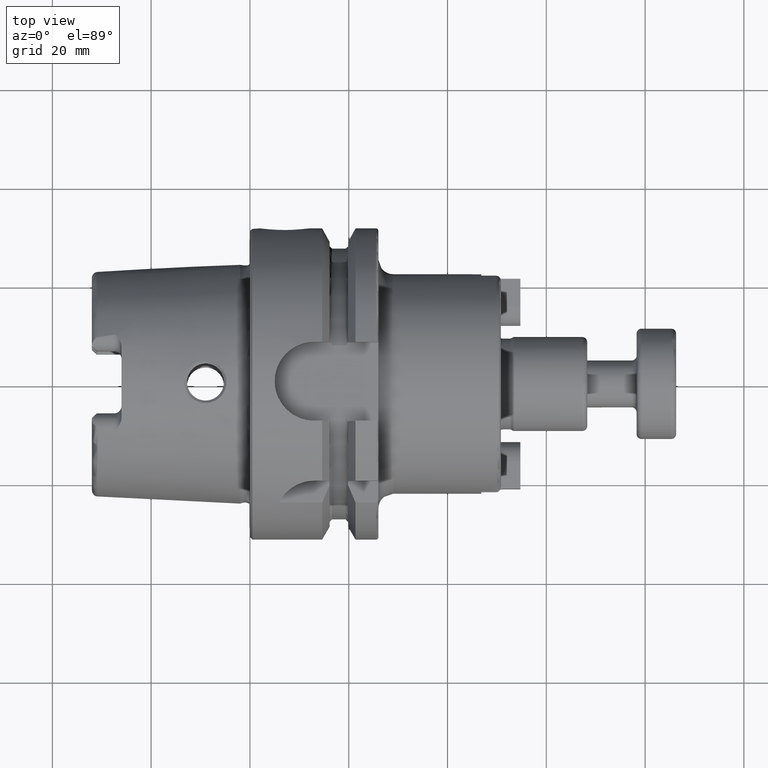
[diagram: clean part render]
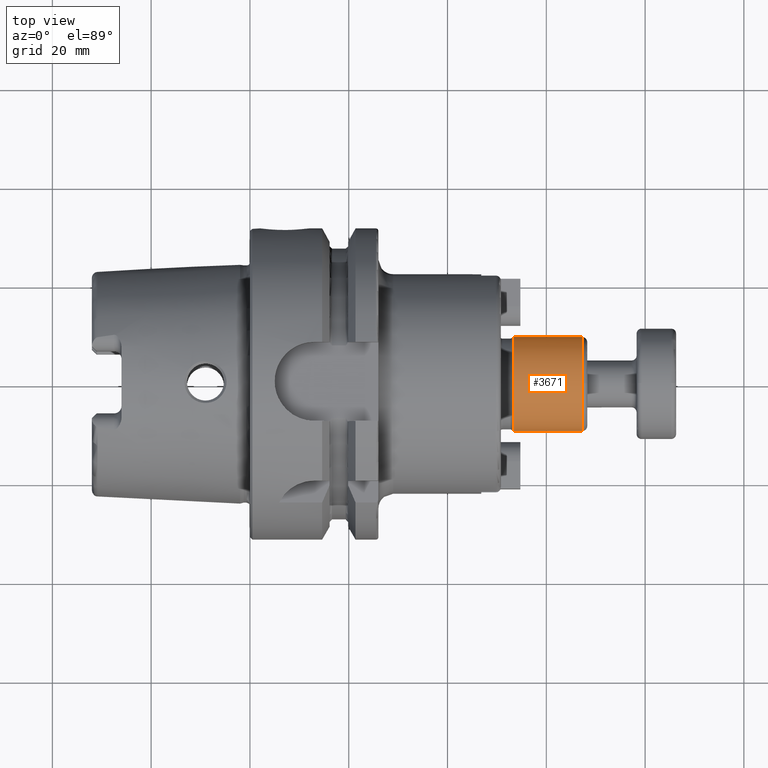
[diagram: same view with one face highlighted and labeled with its STEP entity id]
A machine part, top view. The second image highlights one B-rep face of the part: STEP entity #3671.
In plain terms, the highlighted cylindrical surface (bore or boss wall) has radius 9.525 mm, axis along (1, 0, 0).
Its self-contained STEP definition (entity closure, byte-faithful):
#795=CYLINDRICAL_SURFACE('',#4077,9.525);
#868=FACE_OUTER_BOUND('',#1067,.T.);
#1067=EDGE_LOOP('',(#2815,#2816,#2817,#2818,#2819));
#1278=LINE('',#5861,#1472);
#1472=VECTOR('',#4681,9.525);
#1666=CIRCLE('',#4075,9.525);
#1667=CIRCLE('',#4076,9.525);
#1668=CIRCLE('',#4078,9.525);
#1919=VERTEX_POINT('',#5854);
#1920=VERTEX_POINT('',#5856);
#1921=VERTEX_POINT('',#5860);
#2258=EDGE_CURVE('',#1919,#1920,#1666,.T.);
#2259=EDGE_CURVE('',#1920,#1919,#1667,.T.);
#2260=EDGE_CURVE('',#1920,#1921,#1278,.T.);
#2261=EDGE_CURVE('',#1921,#1921,#1668,.T.);
#2815=ORIENTED_EDGE('',*,*,#2259,.F.);
#2816=ORIENTED_EDGE('',*,*,#2260,.T.);
#2817=ORIENTED_EDGE('',*,*,#2261,.T.);
#2818=ORIENTED_EDGE('',*,*,#2260,.F.);
#2819=ORIENTED_EDGE('',*,*,#2258,.F.);
#3671=ADVANCED_FACE('',(#868),#795,.T.);
#4075=AXIS2_PLACEMENT_3D('',#5857,#4675,#4676);
#4076=AXIS2_PLACEMENT_3D('',#5858,#4677,#4678);
#4077=AXIS2_PLACEMENT_3D('',#5859,#4679,#4680);
#4078=AXIS2_PLACEMENT_3D('',#5862,#4682,#4683);
#4675=DIRECTION('center_axis',(1.,0.,0.));
#4676=DIRECTION('ref_axis',(0.,-1.,1.83697019872103E-16));
#4677=DIRECTION('center_axis',(1.,0.,0.));
#4678=DIRECTION('ref_axis',(0.,-1.,1.83697019872103E-16));
#4679=DIRECTION('center_axis',(1.,0.,0.));
#4680=DIRECTION('ref_axis',(0.,1.,0.));
#4681=DIRECTION('',(-1.,0.,0.));
#4682=DIRECTION('center_axis',(1.,0.,0.));
#4683=DIRECTION('ref_axis',(0.,0.,-1.));
#5854=CARTESIAN_POINT('',(67.28,-1.16647607618785E-15,9.525));
#5856=CARTESIAN_POINT('',(67.28,-9.525,-1.16647607618785E-15));
#5857=CARTESIAN_POINT('Origin',(67.28,0.,0.));
#5858=CARTESIAN_POINT('Origin',(67.28,0.,0.));
#5859=CARTESIAN_POINT('Origin',(60.8214582562299,0.,0.));
#5860=CARTESIAN_POINT('',(53.3629165124599,-9.525,-1.16647607618785E-15));
#5861=CARTESIAN_POINT('',(60.8214582562299,-9.525,-1.16647607618785E-15));
#5862=CARTESIAN_POINT('Origin',(53.3629165124599,0.,0.));